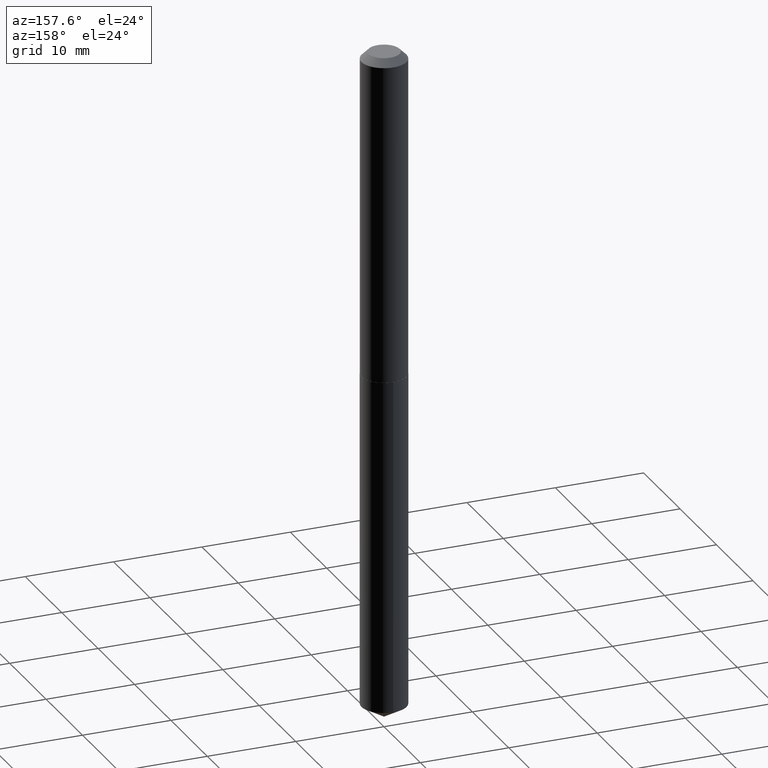
[diagram: clean part render]
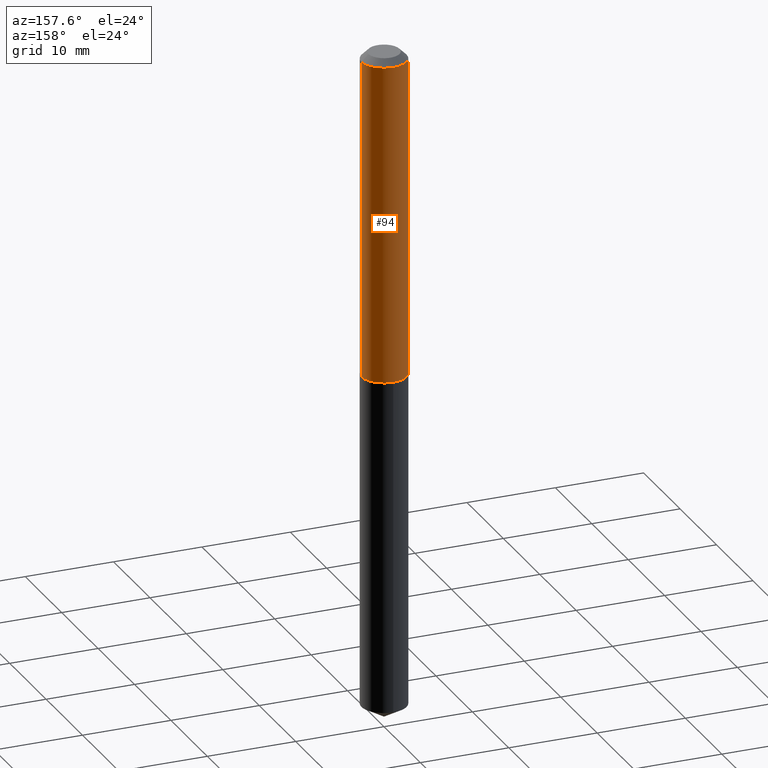
[diagram: same view with one face highlighted and labeled with its STEP entity id]
A machine part, auxiliary view. The second image highlights one B-rep face of the part: STEP entity #94.
In plain terms, the highlighted cylindrical surface (edge-blend (fillet) strip) has radius 2.5527 mm, axis along (-0, 0, 1).
Its self-contained STEP definition (entity closure, byte-faithful):
#12 = ORIENTED_EDGE ( 'NONE', *, *, #103, .F. ) ;
#21 = ORIENTED_EDGE ( 'NONE', *, *, #182, .T. ) ;
#31 = EDGE_CURVE ( 'NONE', #172, #35, #47, .T. ) ;
#34 = DIRECTION ( 'NONE',  ( 1.000000000000000000, -6.982962677686269077E-15, 0.000000000000000000 ) ) ;
#35 = VERTEX_POINT ( 'NONE', #368 ) ;
#37 = DIRECTION ( 'NONE',  ( -2.445468806185136877E-29, 3.491481338843145188E-15, 1.000000000000000000 ) ) ;
#39 = LINE ( 'NONE', #135, #221 ) ;
#47 = CIRCLE ( 'NONE', #275, 0.1005000000000001587 ) ;
#58 = AXIS2_PLACEMENT_3D ( 'NONE', #255, #190, #102 ) ;
#69 = CARTESIAN_POINT ( 'NONE',  ( 0.1005000000000001587, -5.766181431099454268E-15, -1.450500000000000345 ) ) ;
#94 = ADVANCED_FACE ( 'NONE', ( #96 ), #337, .T. ) ;
#96 = FACE_OUTER_BOUND ( 'NONE', #366, .T. ) ;
#102 = DIRECTION ( 'NONE',  ( 1.000000000000000000, -6.982962677686266711E-15, 0.000000000000000000 ) ) ;
#103 = EDGE_CURVE ( 'NONE', #163, #265, #326, .T. ) ;
#121 = VECTOR ( 'NONE', #375, 39.37007874015748143 ) ;
#133 = DIRECTION ( 'NONE',  ( -2.445468806185136597E-29, 3.491481338843145583E-15, 1.000000000000000000 ) ) ;
#135 = CARTESIAN_POINT ( 'NONE',  ( -0.1005000000000000893, 7.140954494389013210E-16, -4.943529765706185016E-30 ) ) ;
#149 = AXIS2_PLACEMENT_3D ( 'NONE', #305, #133, #219 ) ;
#163 = VERTEX_POINT ( 'NONE', #365 ) ;
#172 = VERTEX_POINT ( 'NONE', #69 ) ;
#182 = EDGE_CURVE ( 'NONE', #35, #265, #39, .T. ) ;
#190 = DIRECTION ( 'NONE',  ( -2.445468806185136597E-29, 3.491481338843145583E-15, 1.000000000000000000 ) ) ;
#219 = DIRECTION ( 'NONE',  ( 1.000000000000000000, -6.982962677686266711E-15, 4.876176775795935793E-29 ) ) ;
#221 = VECTOR ( 'NONE', #37, 39.37007874015748143 ) ;
#230 = CARTESIAN_POINT ( 'NONE',  ( -0.1005000000000000060, -1.872655787476513947E-15, -0.03125000000000019429 ) ) ;
#238 = CARTESIAN_POINT ( 'NONE',  ( 0.1005000000000000893, -7.017877491074704671E-16, 4.900557659674919900E-30 ) ) ;
#255 = CARTESIAN_POINT ( 'NONE',  ( 7.642090019328598283E-31, -1.091087918388489651E-16, -0.03125000000000019429 ) ) ;
#265 = VERTEX_POINT ( 'NONE', #230 ) ;
#275 = AXIS2_PLACEMENT_3D ( 'NONE', #316, #287, #34 ) ;
#287 = DIRECTION ( 'NONE',  ( -2.445468806185136597E-29, 3.491481338843145583E-15, 1.000000000000000000 ) ) ;
#294 = ORIENTED_EDGE ( 'NONE', *, *, #329, .F. ) ;
#305 = CARTESIAN_POINT ( 'NONE',  ( 0.000000000000000000, 0.000000000000000000, 0.000000000000000000 ) ) ;
#316 = CARTESIAN_POINT ( 'NONE',  ( 3.547152503371541091E-29, -5.064393681991983801E-15, -1.450500000000000345 ) ) ;
#326 = CIRCLE ( 'NONE', #58, 0.1005000000000000060 ) ;
#329 = EDGE_CURVE ( 'NONE', #172, #163, #355, .T. ) ;
#337 = CYLINDRICAL_SURFACE ( 'NONE', #149, 0.1005000000000000893 ) ;
#355 = LINE ( 'NONE', #238, #121 ) ;
#365 = CARTESIAN_POINT ( 'NONE',  ( 0.1005000000000000060, -8.108965409463188774E-16, -0.03125000000000019429 ) ) ;
#366 = EDGE_LOOP ( 'NONE', ( #382, #21, #12, #294 ) ) ;
#368 = CARTESIAN_POINT ( 'NONE',  ( -0.1005000000000001587, -4.350298232553081297E-15, -1.450500000000000345 ) ) ;
#375 = DIRECTION ( 'NONE',  ( -2.445468806185136877E-29, 3.491481338843145188E-15, 1.000000000000000000 ) ) ;
#382 = ORIENTED_EDGE ( 'NONE', *, *, #31, .T. ) ;